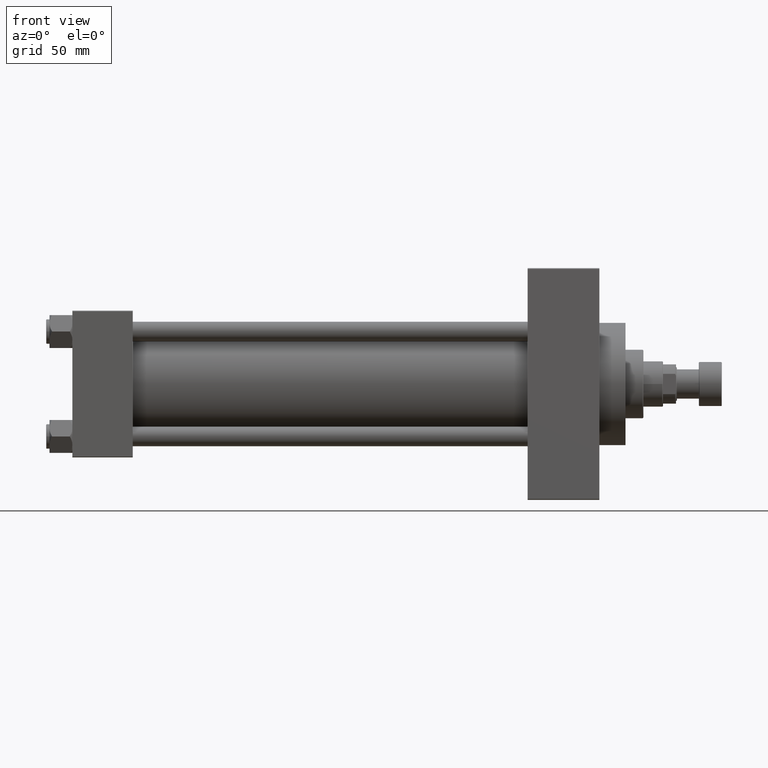
[diagram: clean part render]
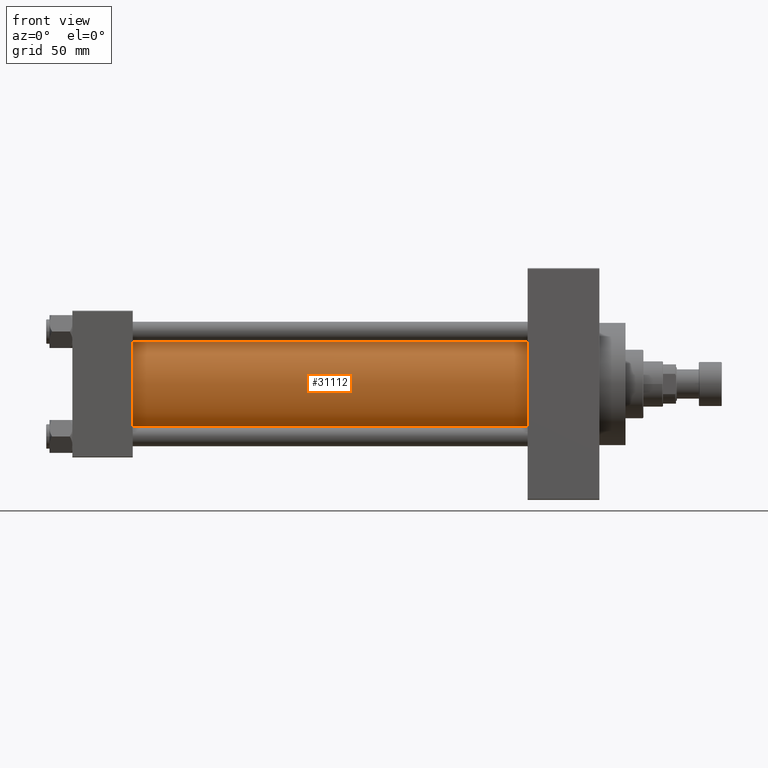
[diagram: same view with one face highlighted and labeled with its STEP entity id]
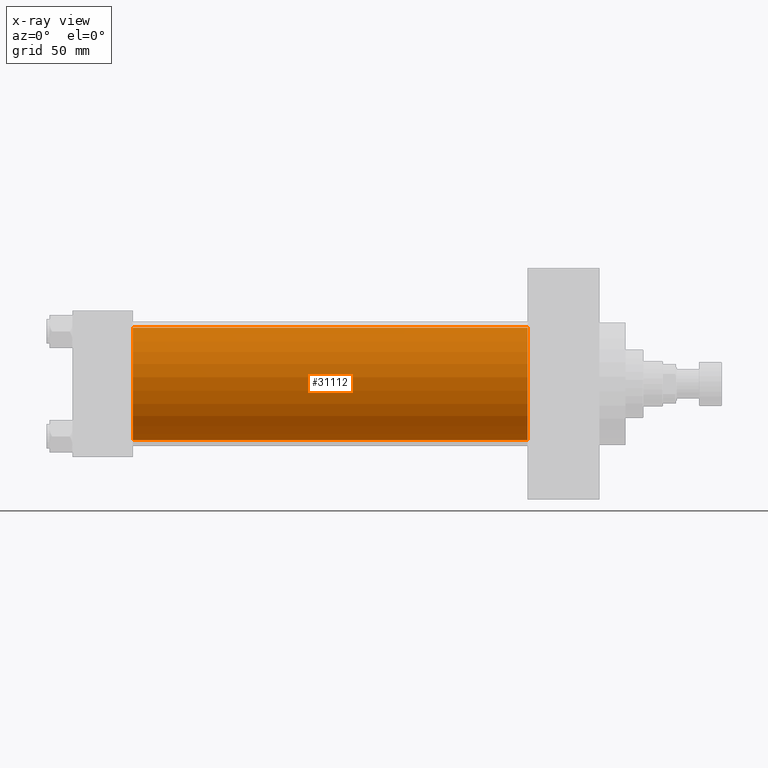
[diagram: x-ray of the same camera — body ghosted, the highlighted face saturated]
A machine part, front view. The second image highlights one B-rep face of the part: STEP entity #31112.
The next image is the same camera in x-ray: the body ghosted, the highlighted face saturated — about 0% of this face is hidden behind the body in this view.
In plain terms, the highlighted cylindrical surface (partial cylindrical patch) has radius 34.5 mm, axis along (-1, -0, -0).
Its self-contained STEP definition (entity closure, byte-faithful):
#1157 = EDGE_CURVE ( 'NONE', #4933, #11789, #49770, .T. ) ;
#2300 = AXIS2_PLACEMENT_3D ( 'NONE', #13383, #39793, #32235 ) ;
#2495 = ORIENTED_EDGE ( 'NONE', *, *, #19623, .T. ) ;
#2899 = DIRECTION ( 'NONE',  ( 1.000000000000000000, -0.000000000000000000, 0.000000000000000000 ) ) ;
#3967 = CARTESIAN_POINT ( 'NONE',  ( 278.9999999999999432, -2.602085213965210642E-15, 34.50000000000000000 ) ) ;
#4933 = VERTEX_POINT ( 'NONE', #23350 ) ;
#6990 = CARTESIAN_POINT ( 'NONE',  ( 278.9999999999999432, 1.622946243093158675E-15, -34.50000000000000000 ) ) ;
#7171 = DIRECTION ( 'NONE',  ( 0.000000000000000000, 0.000000000000000000, 1.000000000000000000 ) ) ;
#11789 = VERTEX_POINT ( 'NONE', #13215 ) ;
#12269 = DIRECTION ( 'NONE',  ( -1.000000000000000000, -0.000000000000000000, -0.000000000000000000 ) ) ;
#12970 = DIRECTION ( 'NONE',  ( 1.000000000000000000, 0.000000000000000000, 0.000000000000000000 ) ) ;
#13215 = CARTESIAN_POINT ( 'NONE',  ( 37.00000000000000711, -2.602085213965210642E-15, 34.50000000000000000 ) ) ;
#13383 = CARTESIAN_POINT ( 'NONE',  ( 278.9999999999999432, -2.602085213965210642E-15, 0.000000000000000000 ) ) ;
#15272 = CIRCLE ( 'NONE', #39384, 34.50000000000000000 ) ;
#15343 = VERTEX_POINT ( 'NONE', #43041 ) ;
#16071 = CARTESIAN_POINT ( 'NONE',  ( 278.9999999999999432, 1.622946243093158675E-15, -34.50000000000000000 ) ) ;
#16740 = CARTESIAN_POINT ( 'NONE',  ( 278.9999999999999432, -2.602085213965210642E-15, 0.000000000000000000 ) ) ;
#18289 = EDGE_CURVE ( 'NONE', #41698, #15343, #23609, .T. ) ;
#18367 = VECTOR ( 'NONE', #12269, 1000.000000000000000 ) ;
#19379 = EDGE_LOOP ( 'NONE', ( #33152, #32882, #30227, #2495 ) ) ;
#19623 = EDGE_CURVE ( 'NONE', #11789, #15343, #23020, .T. ) ;
#23020 = CIRCLE ( 'NONE', #43110, 34.50000000000000000 ) ;
#23350 = CARTESIAN_POINT ( 'NONE',  ( 278.9999999999999432, -2.602085213965210642E-15, 34.50000000000000000 ) ) ;
#23609 = LINE ( 'NONE', #16071, #35055 ) ;
#27552 = EDGE_CURVE ( 'NONE', #4933, #41698, #15272, .T. ) ;
#30227 = ORIENTED_EDGE ( 'NONE', *, *, #1157, .T. ) ;
#31112 = ADVANCED_FACE ( 'NONE', ( #43057 ), #43560, .T. ) ;
#32235 = DIRECTION ( 'NONE',  ( 0.000000000000000000, 0.000000000000000000, 1.000000000000000000 ) ) ;
#32817 = DIRECTION ( 'NONE',  ( 0.000000000000000000, 0.000000000000000000, -1.000000000000000000 ) ) ;
#32882 = ORIENTED_EDGE ( 'NONE', *, *, #27552, .F. ) ;
#33152 = ORIENTED_EDGE ( 'NONE', *, *, #18289, .F. ) ;
#35055 = VECTOR ( 'NONE', #42988, 1000.000000000000000 ) ;
#37868 = CARTESIAN_POINT ( 'NONE',  ( 37.00000000000000711, -2.602085213965210642E-15, 0.000000000000000000 ) ) ;
#39384 = AXIS2_PLACEMENT_3D ( 'NONE', #16740, #12970, #32817 ) ;
#39793 = DIRECTION ( 'NONE',  ( -1.000000000000000000, -0.000000000000000000, -0.000000000000000000 ) ) ;
#41698 = VERTEX_POINT ( 'NONE', #6990 ) ;
#42988 = DIRECTION ( 'NONE',  ( -1.000000000000000000, -0.000000000000000000, -0.000000000000000000 ) ) ;
#43041 = CARTESIAN_POINT ( 'NONE',  ( 37.00000000000000711, 1.622946243093158675E-15, -34.50000000000000000 ) ) ;
#43057 = FACE_OUTER_BOUND ( 'NONE', #19379, .T. ) ;
#43110 = AXIS2_PLACEMENT_3D ( 'NONE', #37868, #2899, #7171 ) ;
#43560 = CYLINDRICAL_SURFACE ( 'NONE', #2300, 34.50000000000000000 ) ;
#49770 = LINE ( 'NONE', #3967, #18367 ) ;